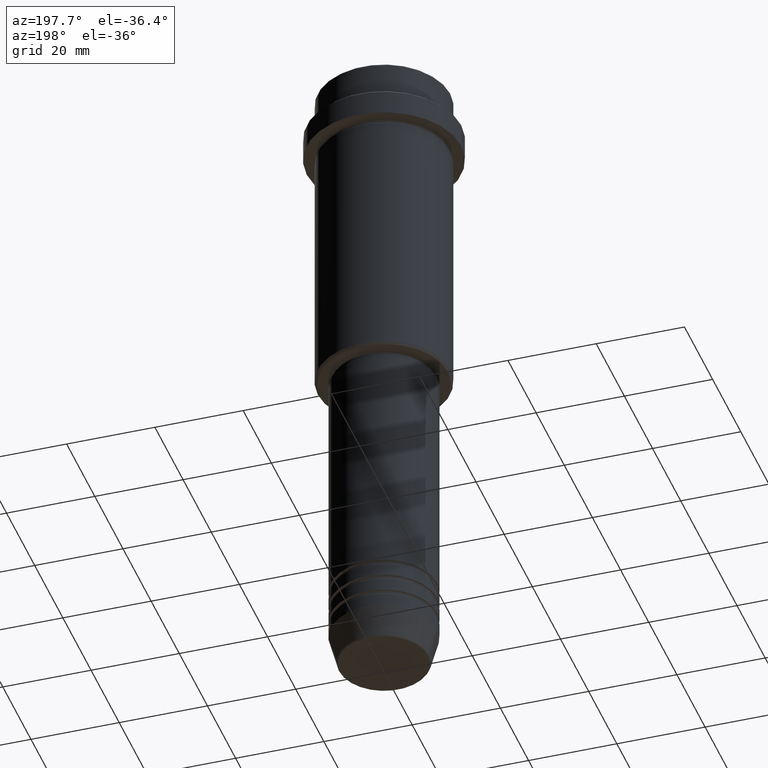
[diagram: clean part render]
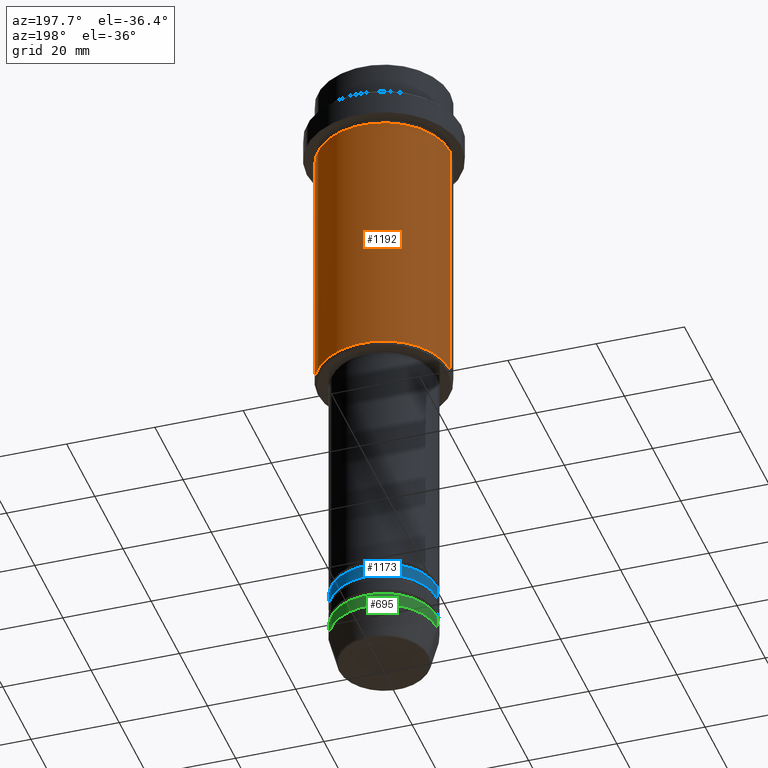
[diagram: same view with three faces highlighted in distinct colors, each labeled with its STEP entity id]
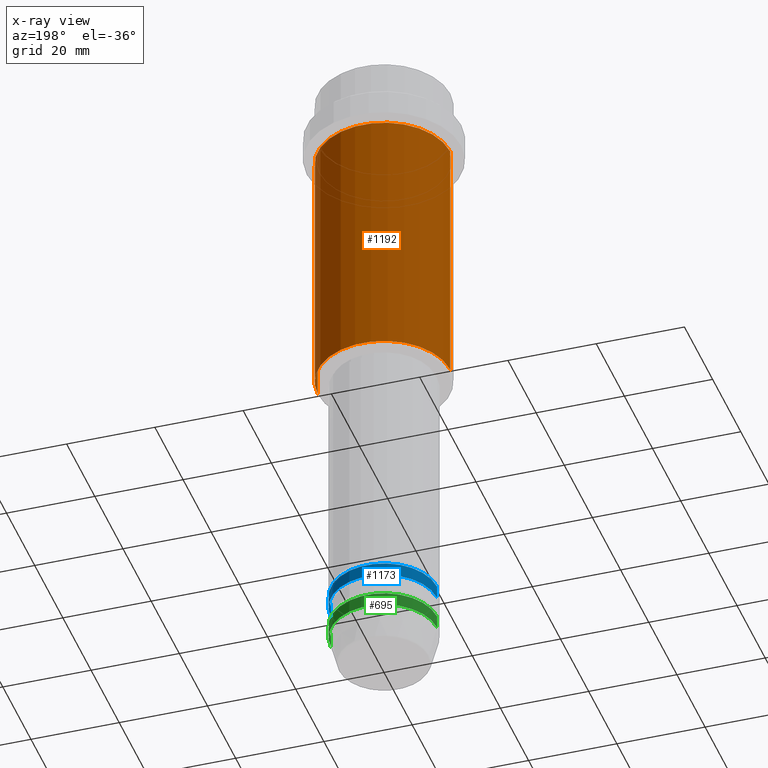
[diagram: x-ray of the same camera — body ghosted, the three highlighted faces saturated]
A machine part, auxiliary view with three faces highlighted in distinct colors.
The next image is the same camera in x-ray (body ghosted, the three faces saturated) — at least one of them is partly hidden behind the body in this view.
Their STEP definitions:

[orange] entity #1192 — the highlighted cylindrical surface (partial cylindrical patch) has radius 15 mm, axis along (-0, -0, 1).
#23 = EDGE_CURVE ( 'NONE', #1168, #637, #115, .T. ) ;
#45 = CARTESIAN_POINT ( 'NONE',  ( -15.00000000000000355, 1.836970198721029983E-15, -16.00000000000000000 ) ) ;
#59 = CARTESIAN_POINT ( 'NONE',  ( -15.00000000000000000, 1.836970198721029589E-15, -74.49999999999998579 ) ) ;
#68 = CARTESIAN_POINT ( 'NONE',  ( 15.00000000000000000, 0.000000000000000000, 0.000000000000000000 ) ) ;
#79 = ORIENTED_EDGE ( 'NONE', *, *, #992, .F. ) ;
#92 = LINE ( 'NONE', #68, #388 ) ;
#115 = LINE ( 'NONE', #903, #549 ) ;
#187 = DIRECTION ( 'NONE',  ( -0.000000000000000000, -0.000000000000000000, 1.000000000000000000 ) ) ;
#201 = ORIENTED_EDGE ( 'NONE', *, *, #23, .T. ) ;
#273 = CIRCLE ( 'NONE', #1318, 15.00000000000000000 ) ;
#288 = CYLINDRICAL_SURFACE ( 'NONE', #1224, 15.00000000000000000 ) ;
#318 = ORIENTED_EDGE ( 'NONE', *, *, #1254, .T. ) ;
#388 = VECTOR ( 'NONE', #541, 1000.000000000000000 ) ;
#440 = VERTEX_POINT ( 'NONE', #890 ) ;
#523 = DIRECTION ( 'NONE',  ( 1.000000000000000000, 0.000000000000000000, 0.000000000000000000 ) ) ;
#533 = FACE_OUTER_BOUND ( 'NONE', #1178, .T. ) ;
#541 = DIRECTION ( 'NONE',  ( -0.000000000000000000, -0.000000000000000000, 1.000000000000000000 ) ) ;
#549 = VECTOR ( 'NONE', #1327, 1000.000000000000000 ) ;
#637 = VERTEX_POINT ( 'NONE', #45 ) ;
#691 = DIRECTION ( 'NONE',  ( 1.000000000000000000, 0.000000000000000000, 0.000000000000000000 ) ) ;
#727 = CARTESIAN_POINT ( 'NONE',  ( 0.000000000000000000, 0.000000000000000000, 0.000000000000000000 ) ) ;
#740 = EDGE_CURVE ( 'NONE', #840, #440, #92, .T. ) ;
#824 = AXIS2_PLACEMENT_3D ( 'NONE', #1347, #1139, #691 ) ;
#840 = VERTEX_POINT ( 'NONE', #1409 ) ;
#890 = CARTESIAN_POINT ( 'NONE',  ( 15.00000000000000178, 0.000000000000000000, -16.00000000000000000 ) ) ;
#903 = CARTESIAN_POINT ( 'NONE',  ( -15.00000000000000000, 1.836970198721029589E-15, 0.000000000000000000 ) ) ;
#992 = EDGE_CURVE ( 'NONE', #440, #637, #1021, .T. ) ;
#1021 = CIRCLE ( 'NONE', #824, 15.00000000000000178 ) ;
#1079 = CARTESIAN_POINT ( 'NONE',  ( 0.000000000000000000, 0.000000000000000000, -74.49999999999998579 ) ) ;
#1139 = DIRECTION ( 'NONE',  ( -0.000000000000000000, -0.000000000000000000, 1.000000000000000000 ) ) ;
#1168 = VERTEX_POINT ( 'NONE', #59 ) ;
#1178 = EDGE_LOOP ( 'NONE', ( #318, #201, #79, #1287 ) ) ;
#1184 = DIRECTION ( 'NONE',  ( -1.000000000000000000, 0.000000000000000000, 0.000000000000000000 ) ) ;
#1192 = ADVANCED_FACE ( 'NONE', ( #533 ), #288, .T. ) ;
#1224 = AXIS2_PLACEMENT_3D ( 'NONE', #727, #187, #523 ) ;
#1254 = EDGE_CURVE ( 'NONE', #840, #1168, #273, .T. ) ;
#1287 = ORIENTED_EDGE ( 'NONE', *, *, #740, .F. ) ;
#1289 = DIRECTION ( 'NONE',  ( -0.000000000000000000, -0.000000000000000000, 1.000000000000000000 ) ) ;
#1318 = AXIS2_PLACEMENT_3D ( 'NONE', #1079, #1289, #1184 ) ;
#1327 = DIRECTION ( 'NONE',  ( -0.000000000000000000, -0.000000000000000000, 1.000000000000000000 ) ) ;
#1347 = CARTESIAN_POINT ( 'NONE',  ( 0.000000000000000000, 0.000000000000000000, -16.00000000000000000 ) ) ;
#1409 = CARTESIAN_POINT ( 'NONE',  ( 15.00000000000000000, 0.000000000000000000, -74.49999999999998579 ) ) ;

[blue] entity #1173 — the highlighted cylindrical surface (partial cylindrical patch) has radius 12 mm, axis along (-0, -0, 1).
#102 = ORIENTED_EDGE ( 'NONE', *, *, #565, .F. ) ;
#158 = CIRCLE ( 'NONE', #365, 12.00000000000000000 ) ;
#172 = DIRECTION ( 'NONE',  ( -0.000000000000000000, -0.000000000000000000, 1.000000000000000000 ) ) ;
#204 = AXIS2_PLACEMENT_3D ( 'NONE', #537, #964, #660 ) ;
#222 = EDGE_CURVE ( 'NONE', #1374, #1260, #756, .T. ) ;
#283 = ORIENTED_EDGE ( 'NONE', *, *, #222, .T. ) ;
#295 = EDGE_LOOP ( 'NONE', ( #1143, #283, #1213, #102 ) ) ;
#302 = CARTESIAN_POINT ( 'NONE',  ( -12.00000000000000000, 1.469576158976823947E-15, 0.000000000000000000 ) ) ;
#336 = EDGE_CURVE ( 'NONE', #722, #1374, #882, .T. ) ;
#365 = AXIS2_PLACEMENT_3D ( 'NONE', #836, #858, #400 ) ;
#396 = LINE ( 'NONE', #1342, #476 ) ;
#400 = DIRECTION ( 'NONE',  ( 1.000000000000000000, 0.000000000000000000, 0.000000000000000000 ) ) ;
#476 = VECTOR ( 'NONE', #172, 1000.000000000000000 ) ;
#511 = FACE_OUTER_BOUND ( 'NONE', #295, .T. ) ;
#528 = DIRECTION ( 'NONE',  ( -0.000000000000000000, -0.000000000000000000, 1.000000000000000000 ) ) ;
#537 = CARTESIAN_POINT ( 'NONE',  ( 0.000000000000000000, 0.000000000000000000, -134.9999999999998863 ) ) ;
#553 = AXIS2_PLACEMENT_3D ( 'NONE', #937, #1058, #737 ) ;
#565 = EDGE_CURVE ( 'NONE', #722, #1019, #396, .T. ) ;
#660 = DIRECTION ( 'NONE',  ( 1.000000000000000000, 0.000000000000000000, 0.000000000000000000 ) ) ;
#715 = CARTESIAN_POINT ( 'NONE',  ( 12.00000000000000000, 0.000000000000000000, -131.9999999999998863 ) ) ;
#721 = CYLINDRICAL_SURFACE ( 'NONE', #553, 12.00000000000000000 ) ;
#722 = VERTEX_POINT ( 'NONE', #939 ) ;
#737 = DIRECTION ( 'NONE',  ( 1.000000000000000000, 0.000000000000000000, 0.000000000000000000 ) ) ;
#756 = LINE ( 'NONE', #302, #1405 ) ;
#762 = CARTESIAN_POINT ( 'NONE',  ( -12.00000000000000000, 1.469576158976823947E-15, -131.9999999999998863 ) ) ;
#836 = CARTESIAN_POINT ( 'NONE',  ( 0.000000000000000000, 0.000000000000000000, -131.9999999999998863 ) ) ;
#858 = DIRECTION ( 'NONE',  ( -0.000000000000000000, -0.000000000000000000, 1.000000000000000000 ) ) ;
#882 = CIRCLE ( 'NONE', #204, 12.00000000000000000 ) ;
#937 = CARTESIAN_POINT ( 'NONE',  ( 0.000000000000000000, 0.000000000000000000, 0.000000000000000000 ) ) ;
#939 = CARTESIAN_POINT ( 'NONE',  ( 12.00000000000000000, 0.000000000000000000, -134.9999999999998863 ) ) ;
#964 = DIRECTION ( 'NONE',  ( -0.000000000000000000, -0.000000000000000000, 1.000000000000000000 ) ) ;
#1019 = VERTEX_POINT ( 'NONE', #715 ) ;
#1058 = DIRECTION ( 'NONE',  ( -0.000000000000000000, -0.000000000000000000, 1.000000000000000000 ) ) ;
#1123 = CARTESIAN_POINT ( 'NONE',  ( -12.00000000000000000, 1.469576158976823947E-15, -134.9999999999998863 ) ) ;
#1143 = ORIENTED_EDGE ( 'NONE', *, *, #336, .T. ) ;
#1173 = ADVANCED_FACE ( 'NONE', ( #511 ), #721, .T. ) ;
#1183 = EDGE_CURVE ( 'NONE', #1019, #1260, #158, .T. ) ;
#1213 = ORIENTED_EDGE ( 'NONE', *, *, #1183, .F. ) ;
#1260 = VERTEX_POINT ( 'NONE', #762 ) ;
#1342 = CARTESIAN_POINT ( 'NONE',  ( 12.00000000000000000, 0.000000000000000000, 0.000000000000000000 ) ) ;
#1374 = VERTEX_POINT ( 'NONE', #1123 ) ;
#1405 = VECTOR ( 'NONE', #528, 1000.000000000000000 ) ;

[green] entity #695 — the highlighted cylindrical surface (partial cylindrical patch) has radius 12 mm, axis along (-0, -0, 1).
#12 = AXIS2_PLACEMENT_3D ( 'NONE', #1014, #930, #699 ) ;
#16 = CARTESIAN_POINT ( 'NONE',  ( 12.00000000000000000, 0.000000000000000000, 0.000000000000000000 ) ) ;
#99 = DIRECTION ( 'NONE',  ( -0.000000000000000000, -0.000000000000000000, 1.000000000000000000 ) ) ;
#109 = CIRCLE ( 'NONE', #12, 12.00000000000000000 ) ;
#112 = ORIENTED_EDGE ( 'NONE', *, *, #835, .F. ) ;
#123 = VECTOR ( 'NONE', #1345, 1000.000000000000000 ) ;
#153 = AXIS2_PLACEMENT_3D ( 'NONE', #556, #99, #342 ) ;
#169 = EDGE_CURVE ( 'NONE', #983, #697, #182, .T. ) ;
#182 = LINE ( 'NONE', #912, #123 ) ;
#205 = VERTEX_POINT ( 'NONE', #855 ) ;
#291 = CARTESIAN_POINT ( 'NONE',  ( -12.00000000000000000, 1.469576158976823947E-15, -139.9999999999999716 ) ) ;
#342 = DIRECTION ( 'NONE',  ( 1.000000000000000000, 0.000000000000000000, 0.000000000000000000 ) ) ;
#410 = CARTESIAN_POINT ( 'NONE',  ( 0.000000000000000000, 0.000000000000000000, 0.000000000000000000 ) ) ;
#424 = DIRECTION ( 'NONE',  ( 1.000000000000000000, 0.000000000000000000, 0.000000000000000000 ) ) ;
#450 = ORIENTED_EDGE ( 'NONE', *, *, #1322, .F. ) ;
#453 = LINE ( 'NONE', #16, #1043 ) ;
#513 = DIRECTION ( 'NONE',  ( -0.000000000000000000, -0.000000000000000000, 1.000000000000000000 ) ) ;
#545 = CARTESIAN_POINT ( 'NONE',  ( 12.00000000000000000, 0.000000000000000000, -143.0000000000000000 ) ) ;
#556 = CARTESIAN_POINT ( 'NONE',  ( 0.000000000000000000, 0.000000000000000000, -143.0000000000000000 ) ) ;
#619 = CYLINDRICAL_SURFACE ( 'NONE', #1129, 12.00000000000000000 ) ;
#633 = ORIENTED_EDGE ( 'NONE', *, *, #169, .T. ) ;
#695 = ADVANCED_FACE ( 'NONE', ( #1372 ), #619, .T. ) ;
#697 = VERTEX_POINT ( 'NONE', #291 ) ;
#699 = DIRECTION ( 'NONE',  ( 1.000000000000000000, 0.000000000000000000, 0.000000000000000000 ) ) ;
#713 = ORIENTED_EDGE ( 'NONE', *, *, #801, .T. ) ;
#801 = EDGE_CURVE ( 'NONE', #1246, #983, #1384, .T. ) ;
#835 = EDGE_CURVE ( 'NONE', #1246, #205, #453, .T. ) ;
#855 = CARTESIAN_POINT ( 'NONE',  ( 12.00000000000000000, 0.000000000000000000, -139.9999999999999716 ) ) ;
#912 = CARTESIAN_POINT ( 'NONE',  ( -12.00000000000000000, 1.469576158976823947E-15, 0.000000000000000000 ) ) ;
#930 = DIRECTION ( 'NONE',  ( -0.000000000000000000, -0.000000000000000000, 1.000000000000000000 ) ) ;
#974 = DIRECTION ( 'NONE',  ( -0.000000000000000000, -0.000000000000000000, 1.000000000000000000 ) ) ;
#983 = VERTEX_POINT ( 'NONE', #1239 ) ;
#1014 = CARTESIAN_POINT ( 'NONE',  ( 0.000000000000000000, 0.000000000000000000, -139.9999999999999716 ) ) ;
#1043 = VECTOR ( 'NONE', #974, 1000.000000000000000 ) ;
#1129 = AXIS2_PLACEMENT_3D ( 'NONE', #410, #513, #424 ) ;
#1239 = CARTESIAN_POINT ( 'NONE',  ( -12.00000000000000000, 1.469576158976823947E-15, -143.0000000000000000 ) ) ;
#1246 = VERTEX_POINT ( 'NONE', #545 ) ;
#1322 = EDGE_CURVE ( 'NONE', #205, #697, #109, .T. ) ;
#1345 = DIRECTION ( 'NONE',  ( -0.000000000000000000, -0.000000000000000000, 1.000000000000000000 ) ) ;
#1353 = EDGE_LOOP ( 'NONE', ( #713, #633, #450, #112 ) ) ;
#1372 = FACE_OUTER_BOUND ( 'NONE', #1353, .T. ) ;
#1384 = CIRCLE ( 'NONE', #153, 12.00000000000000000 ) ;